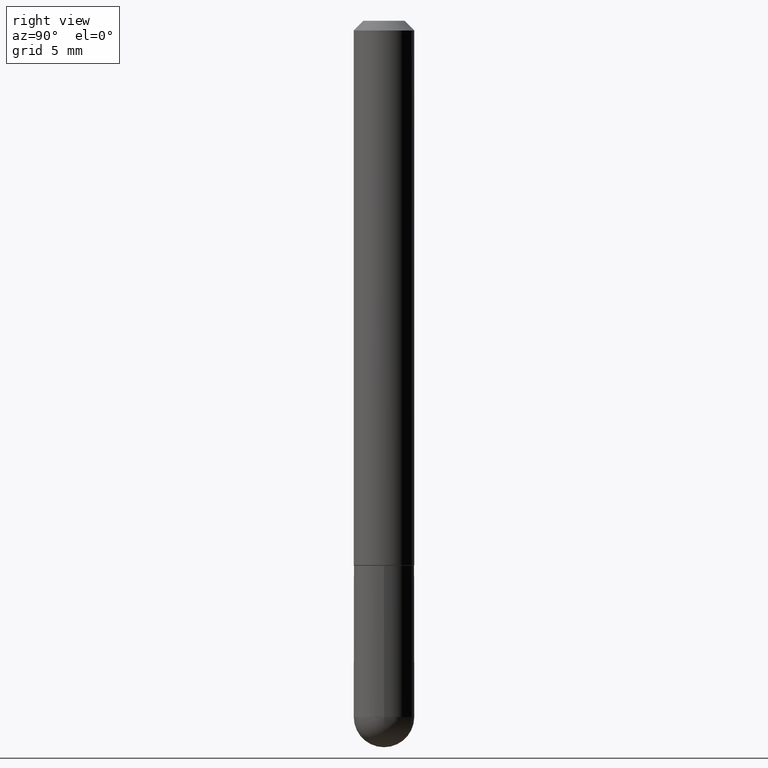
[diagram: clean part render]
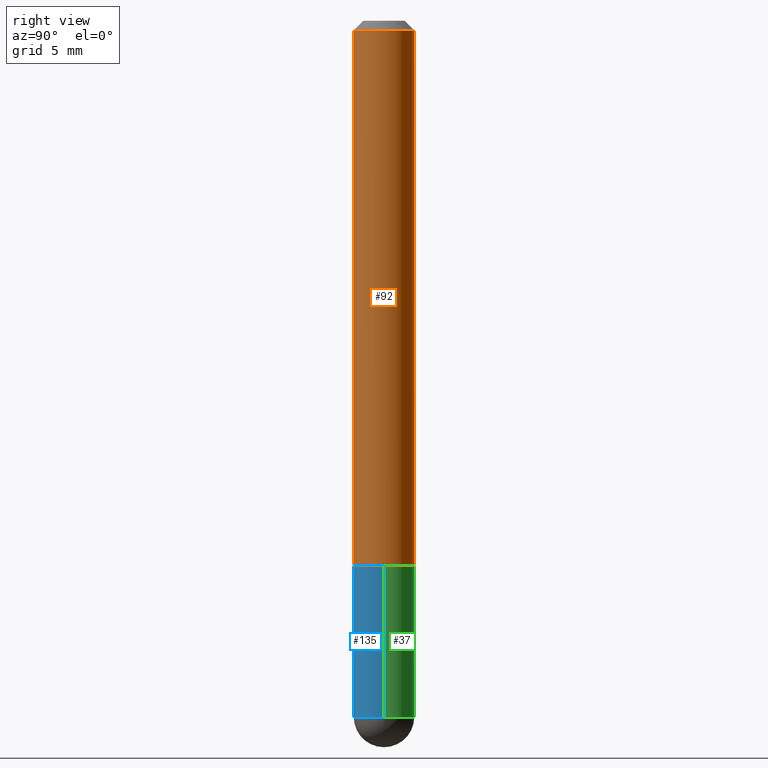
[diagram: same view with three faces highlighted in distinct colors, each labeled with its STEP entity id]
A machine part, right view with three faces highlighted in distinct colors.
Their STEP definitions:

[orange] entity #92 — the highlighted cylindrical surface (edge-blend (fillet) strip) has radius 1.5875 mm, axis along (-0, 0, 1).
#26 = LINE ( 'NONE', #352, #90 ) ;
#33 = CARTESIAN_POINT ( 'NONE',  ( 2.725161792065672302E-29, -3.958143014161942091E-15, -1.124000000000000110 ) ) ;
#36 = VERTEX_POINT ( 'NONE', #236 ) ;
#51 = DIRECTION ( 'NONE',  ( -6.982962677686266711E-15, -1.000000000000000000, 3.521479549966141167E-15 ) ) ;
#80 = CYLINDRICAL_SURFACE ( 'NONE', #299, 0.06250000000000002776 ) ;
#89 = CIRCLE ( 'NONE', #324, 0.06249999999999995143 ) ;
#90 = VECTOR ( 'NONE', #156, 39.37007874015748143 ) ;
#92 = ADVANCED_FACE ( 'NONE', ( #274 ), #80, .T. ) ;
#97 = EDGE_CURVE ( 'NONE', #36, #327, #89, .T. ) ;
#117 = DIRECTION ( 'NONE',  ( -2.424521167318213835E-29, 3.521479549966140772E-15, 1.000000000000000000 ) ) ;
#141 = CARTESIAN_POINT ( 'NONE',  ( 4.440892098500628134E-16, 0.06250000000000002776, -2.200924718728839215E-16 ) ) ;
#149 = CARTESIAN_POINT ( 'NONE',  ( 4.440892098500770129E-16, 0.06249999999999615585, -1.124000000000000332 ) ) ;
#152 = CARTESIAN_POINT ( 'NONE',  ( -4.364351673553652426E-16, -0.06250000000000408007, -1.123999999999999888 ) ) ;
#156 = DIRECTION ( 'NONE',  ( -2.424521167318214115E-29, 3.521479549966140772E-15, 1.000000000000000000 ) ) ;
#169 = EDGE_LOOP ( 'NONE', ( #351, #286, #201, #326 ) ) ;
#186 = EDGE_CURVE ( 'NONE', #390, #327, #279, .T. ) ;
#201 = ORIENTED_EDGE ( 'NONE', *, *, #97, .F. ) ;
#212 = CARTESIAN_POINT ( 'NONE',  ( 0.000000000000000000, 0.000000000000000000, 0.000000000000000000 ) ) ;
#216 = DIRECTION ( 'NONE',  ( -6.982962677686265133E-15, -1.000000000000000000, 4.370956789862812472E-15 ) ) ;
#236 = CARTESIAN_POINT ( 'NONE',  ( -4.287811248607198352E-16, -0.06250000000000001388, -0.01999999999999984776 ) ) ;
#238 = CIRCLE ( 'NONE', #325, 0.06250000000000012490 ) ;
#248 = DIRECTION ( 'NONE',  ( -2.424521167318213835E-29, 3.521479549966140772E-15, 1.000000000000000000 ) ) ;
#253 = VERTEX_POINT ( 'NONE', #152 ) ;
#274 = FACE_OUTER_BOUND ( 'NONE', #169, .T. ) ;
#279 = LINE ( 'NONE', #141, #300 ) ;
#280 = DIRECTION ( 'NONE',  ( -2.424521167318213835E-29, 3.521479549966140772E-15, 1.000000000000000000 ) ) ;
#286 = ORIENTED_EDGE ( 'NONE', *, *, #186, .T. ) ;
#299 = AXIS2_PLACEMENT_3D ( 'NONE', #212, #117, #51 ) ;
#300 = VECTOR ( 'NONE', #396, 39.37007874015748143 ) ;
#324 = AXIS2_PLACEMENT_3D ( 'NONE', #368, #248, #376 ) ;
#325 = AXIS2_PLACEMENT_3D ( 'NONE', #33, #280, #216 ) ;
#326 = ORIENTED_EDGE ( 'NONE', *, *, #328, .F. ) ;
#327 = VERTEX_POINT ( 'NONE', #356 ) ;
#328 = EDGE_CURVE ( 'NONE', #253, #36, #26, .T. ) ;
#351 = ORIENTED_EDGE ( 'NONE', *, *, #369, .T. ) ;
#352 = CARTESIAN_POINT ( 'NONE',  ( -4.364351673553918666E-16, -0.06250000000000002776, 2.200924718728839215E-16 ) ) ;
#356 = CARTESIAN_POINT ( 'NONE',  ( 4.364351673553917187E-16, 0.06249999999999988204, -0.02000000000000029185 ) ) ;
#368 = CARTESIAN_POINT ( 'NONE',  ( 4.849042334636444380E-31, -7.042959099932305852E-17, -0.02000000000000006981 ) ) ;
#369 = EDGE_CURVE ( 'NONE', #253, #390, #238, .T. ) ;
#376 = DIRECTION ( 'NONE',  ( -6.982962677686265922E-15, -1.000000000000000000, 3.551402391763545142E-15 ) ) ;
#390 = VERTEX_POINT ( 'NONE', #149 ) ;
#396 = DIRECTION ( 'NONE',  ( -2.424521167318214115E-29, 3.521479549966140772E-15, 1.000000000000000000 ) ) ;

[blue] entity #135 — the highlighted cylindrical surface (edge-blend (fillet) strip) has radius 1.5875 mm, axis along (-0, 0, 1).
#5 = AXIS2_PLACEMENT_3D ( 'NONE', #106, #361, #298 ) ;
#13 = ORIENTED_EDGE ( 'NONE', *, *, #350, .T. ) ;
#17 = DIRECTION ( 'NONE',  ( 1.000000000000000000, -6.982962677686269077E-15, 0.000000000000000000 ) ) ;
#19 = CARTESIAN_POINT ( 'NONE',  ( 0.06250000000000001388, -4.364351673553930105E-15, -1.124999999999999778 ) ) ;
#45 = EDGE_CURVE ( 'NONE', #87, #155, #246, .T. ) ;
#54 = LINE ( 'NONE', #76, #195 ) ;
#59 = AXIS2_PLACEMENT_3D ( 'NONE', #256, #91, #259 ) ;
#75 = CARTESIAN_POINT ( 'NONE',  ( 0.000000000000000000, 0.000000000000000000, 0.000000000000000000 ) ) ;
#76 = CARTESIAN_POINT ( 'NONE',  ( -0.06249999999999997918, 4.440892098500624683E-16, -3.074334431409315413E-30 ) ) ;
#82 = CIRCLE ( 'NONE', #365, 0.06250000000000001388 ) ;
#84 = EDGE_CURVE ( 'NONE', #200, #188, #54, .T. ) ;
#87 = VERTEX_POINT ( 'NONE', #215 ) ;
#88 = CARTESIAN_POINT ( 'NONE',  ( 0.06249999999999997918, -4.364351673553915708E-16, 3.047610484872459170E-30 ) ) ;
#91 = DIRECTION ( 'NONE',  ( -2.445468806185136597E-29, 3.491481338843145583E-15, 1.000000000000000000 ) ) ;
#101 = ORIENTED_EDGE ( 'NONE', *, *, #147, .F. ) ;
#106 = CARTESIAN_POINT ( 'NONE',  ( 3.515361408891134418E-29, -5.019004424587023131E-15, -1.437500000000000222 ) ) ;
#120 = VECTOR ( 'NONE', #219, 39.37007874015748143 ) ;
#135 = ADVANCED_FACE ( 'NONE', ( #394 ), #395, .T. ) ;
#139 = VERTEX_POINT ( 'NONE', #19 ) ;
#143 = CARTESIAN_POINT ( 'NONE',  ( -0.06249999999999995143, -4.029371255542718167E-15, -1.437500000000000222 ) ) ;
#147 = EDGE_CURVE ( 'NONE', #188, #139, #82, .T. ) ;
#155 = VERTEX_POINT ( 'NONE', #306 ) ;
#180 = DIRECTION ( 'NONE',  ( 1.000000000000000000, -6.982962677686267499E-15, 4.876176775795936353E-29 ) ) ;
#188 = VERTEX_POINT ( 'NONE', #209 ) ;
#193 = EDGE_LOOP ( 'NONE', ( #199, #363, #283, #13, #101 ) ) ;
#195 = VECTOR ( 'NONE', #375, 39.37007874015748143 ) ;
#199 = ORIENTED_EDGE ( 'NONE', *, *, #84, .F. ) ;
#200 = VERTEX_POINT ( 'NONE', #143 ) ;
#209 = CARTESIAN_POINT ( 'NONE',  ( -0.06250000000000001388, -4.029371255542718167E-15, -1.124999999999999778 ) ) ;
#215 = CARTESIAN_POINT ( 'NONE',  ( -4.440892098500294840E-16, -0.06250000000000532907, -1.437500000000000000 ) ) ;
#219 = DIRECTION ( 'NONE',  ( -2.445468806185136877E-29, 3.491481338843145188E-15, 1.000000000000000000 ) ) ;
#231 = CIRCLE ( 'NONE', #59, 0.06249999999999995143 ) ;
#242 = DIRECTION ( 'NONE',  ( -2.445468806185136597E-29, 3.491481338843145583E-15, 1.000000000000000000 ) ) ;
#246 = CIRCLE ( 'NONE', #5, 0.06249999999999995143 ) ;
#256 = CARTESIAN_POINT ( 'NONE',  ( 3.515361408891134418E-29, -5.019004424587023131E-15, -1.437500000000000222 ) ) ;
#259 = DIRECTION ( 'NONE',  ( 1.000000000000000000, -6.982962677686268288E-15, 0.000000000000000000 ) ) ;
#264 = EDGE_CURVE ( 'NONE', #200, #87, #231, .T. ) ;
#283 = ORIENTED_EDGE ( 'NONE', *, *, #45, .T. ) ;
#298 = DIRECTION ( 'NONE',  ( 1.000000000000000000, -6.982962677686268288E-15, 0.000000000000000000 ) ) ;
#306 = CARTESIAN_POINT ( 'NONE',  ( 0.06249999999999995143, -4.909895632748172453E-15, -1.437500000000000222 ) ) ;
#330 = DIRECTION ( 'NONE',  ( -2.445468806185136597E-29, 3.491481338843145583E-15, 1.000000000000000000 ) ) ;
#344 = LINE ( 'NONE', #88, #120 ) ;
#350 = EDGE_CURVE ( 'NONE', #155, #139, #344, .T. ) ;
#361 = DIRECTION ( 'NONE',  ( -2.445468806185136597E-29, 3.491481338843145583E-15, 1.000000000000000000 ) ) ;
#363 = ORIENTED_EDGE ( 'NONE', *, *, #264, .T. ) ;
#365 = AXIS2_PLACEMENT_3D ( 'NONE', #370, #242, #17 ) ;
#370 = CARTESIAN_POINT ( 'NONE',  ( 2.751152406958278111E-29, -3.927916506198538435E-15, -1.124999999999999778 ) ) ;
#375 = DIRECTION ( 'NONE',  ( -2.445468806185136877E-29, 3.491481338843145188E-15, 1.000000000000000000 ) ) ;
#394 = FACE_OUTER_BOUND ( 'NONE', #193, .T. ) ;
#395 = CYLINDRICAL_SURFACE ( 'NONE', #398, 0.06249999999999997918 ) ;
#398 = AXIS2_PLACEMENT_3D ( 'NONE', #75, #330, #180 ) ;

[green] entity #37 — the highlighted cylindrical surface (edge-blend (fillet) strip) has radius 1.5875 mm, axis along (-0, 0, 1).
#9 = EDGE_CURVE ( 'NONE', #139, #188, #130, .T. ) ;
#19 = CARTESIAN_POINT ( 'NONE',  ( 0.06250000000000001388, -4.364351673553930105E-15, -1.124999999999999778 ) ) ;
#24 = ORIENTED_EDGE ( 'NONE', *, *, #9, .F. ) ;
#34 = EDGE_LOOP ( 'NONE', ( #103, #162, #24, #367, #266 ) ) ;
#37 = ADVANCED_FACE ( 'NONE', ( #233 ), #44, .T. ) ;
#41 = DIRECTION ( 'NONE',  ( -2.445468806185136597E-29, 3.491481338843145583E-15, 1.000000000000000000 ) ) ;
#44 = CYLINDRICAL_SURFACE ( 'NONE', #331, 0.06249999999999997918 ) ;
#49 = DIRECTION ( 'NONE',  ( 1.000000000000000000, -6.982962677686268288E-15, 0.000000000000000000 ) ) ;
#54 = LINE ( 'NONE', #76, #195 ) ;
#76 = CARTESIAN_POINT ( 'NONE',  ( -0.06249999999999997918, 4.440892098500624683E-16, -3.074334431409315413E-30 ) ) ;
#84 = EDGE_CURVE ( 'NONE', #200, #188, #54, .T. ) ;
#88 = CARTESIAN_POINT ( 'NONE',  ( 0.06249999999999997918, -4.364351673553915708E-16, 3.047610484872459170E-30 ) ) ;
#96 = CARTESIAN_POINT ( 'NONE',  ( 2.751152406958278111E-29, -3.927916506198538435E-15, -1.124999999999999778 ) ) ;
#103 = ORIENTED_EDGE ( 'NONE', *, *, #228, .T. ) ;
#120 = VECTOR ( 'NONE', #219, 39.37007874015748143 ) ;
#130 = CIRCLE ( 'NONE', #397, 0.06250000000000001388 ) ;
#136 = CARTESIAN_POINT ( 'NONE',  ( 0.000000000000000000, 0.000000000000000000, 0.000000000000000000 ) ) ;
#138 = AXIS2_PLACEMENT_3D ( 'NONE', #312, #282, #405 ) ;
#139 = VERTEX_POINT ( 'NONE', #19 ) ;
#143 = CARTESIAN_POINT ( 'NONE',  ( -0.06249999999999995143, -4.029371255542718167E-15, -1.437500000000000222 ) ) ;
#146 = CARTESIAN_POINT ( 'NONE',  ( 4.364351673554256397E-16, 0.06249999999999480971, -1.437500000000000444 ) ) ;
#155 = VERTEX_POINT ( 'NONE', #306 ) ;
#157 = VERTEX_POINT ( 'NONE', #146 ) ;
#162 = ORIENTED_EDGE ( 'NONE', *, *, #84, .T. ) ;
#188 = VERTEX_POINT ( 'NONE', #209 ) ;
#195 = VECTOR ( 'NONE', #375, 39.37007874015748143 ) ;
#200 = VERTEX_POINT ( 'NONE', #143 ) ;
#209 = CARTESIAN_POINT ( 'NONE',  ( -0.06250000000000001388, -4.029371255542718167E-15, -1.124999999999999778 ) ) ;
#211 = CARTESIAN_POINT ( 'NONE',  ( 3.515361408891134418E-29, -5.019004424587023131E-15, -1.437500000000000222 ) ) ;
#214 = AXIS2_PLACEMENT_3D ( 'NONE', #211, #337, #49 ) ;
#219 = DIRECTION ( 'NONE',  ( -2.445468806185136877E-29, 3.491481338843145188E-15, 1.000000000000000000 ) ) ;
#228 = EDGE_CURVE ( 'NONE', #157, #200, #392, .T. ) ;
#233 = FACE_OUTER_BOUND ( 'NONE', #34, .T. ) ;
#265 = DIRECTION ( 'NONE',  ( -2.445468806185136597E-29, 3.491481338843145583E-15, 1.000000000000000000 ) ) ;
#266 = ORIENTED_EDGE ( 'NONE', *, *, #400, .T. ) ;
#282 = DIRECTION ( 'NONE',  ( -2.445468806185136597E-29, 3.491481338843145583E-15, 1.000000000000000000 ) ) ;
#306 = CARTESIAN_POINT ( 'NONE',  ( 0.06249999999999995143, -4.909895632748172453E-15, -1.437500000000000222 ) ) ;
#312 = CARTESIAN_POINT ( 'NONE',  ( 3.515361408891134418E-29, -5.019004424587023131E-15, -1.437500000000000222 ) ) ;
#331 = AXIS2_PLACEMENT_3D ( 'NONE', #136, #41, #393 ) ;
#337 = DIRECTION ( 'NONE',  ( -2.445468806185136597E-29, 3.491481338843145583E-15, 1.000000000000000000 ) ) ;
#344 = LINE ( 'NONE', #88, #120 ) ;
#350 = EDGE_CURVE ( 'NONE', #155, #139, #344, .T. ) ;
#367 = ORIENTED_EDGE ( 'NONE', *, *, #350, .F. ) ;
#375 = DIRECTION ( 'NONE',  ( -2.445468806185136877E-29, 3.491481338843145188E-15, 1.000000000000000000 ) ) ;
#388 = DIRECTION ( 'NONE',  ( 1.000000000000000000, -6.982962677686269077E-15, 0.000000000000000000 ) ) ;
#392 = CIRCLE ( 'NONE', #214, 0.06249999999999995143 ) ;
#393 = DIRECTION ( 'NONE',  ( 1.000000000000000000, -6.982962677686267499E-15, 4.876176775795936353E-29 ) ) ;
#397 = AXIS2_PLACEMENT_3D ( 'NONE', #96, #265, #388 ) ;
#400 = EDGE_CURVE ( 'NONE', #155, #157, #411, .T. ) ;
#405 = DIRECTION ( 'NONE',  ( 1.000000000000000000, -6.982962677686268288E-15, 0.000000000000000000 ) ) ;
#411 = CIRCLE ( 'NONE', #138, 0.06249999999999995143 ) ;